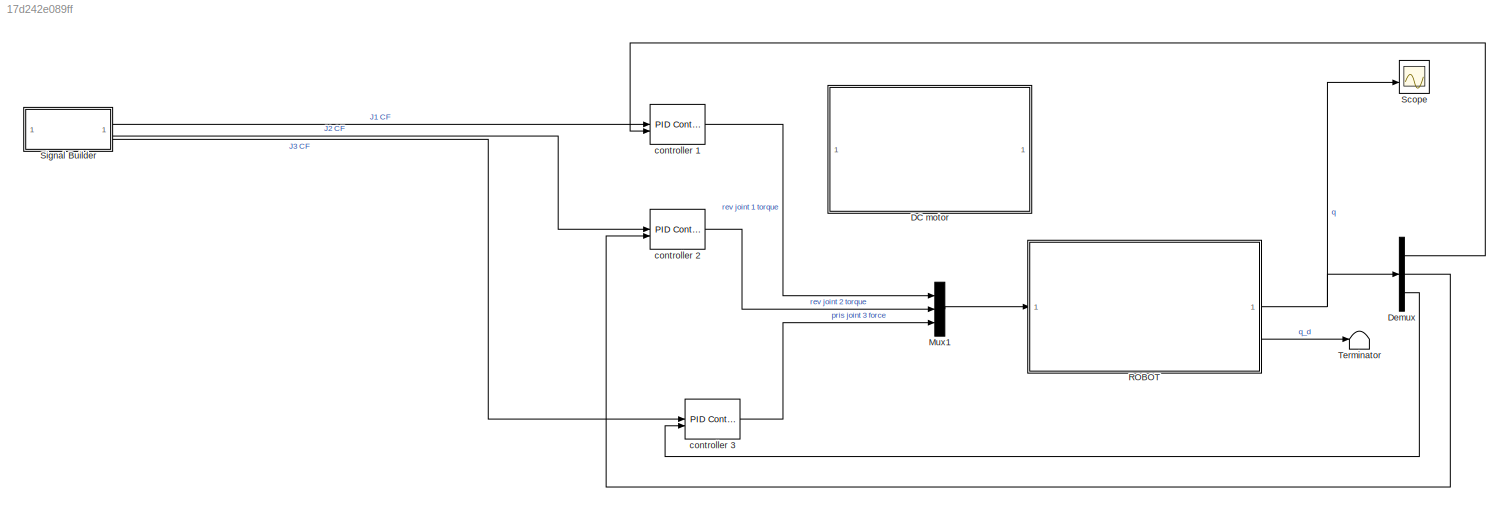
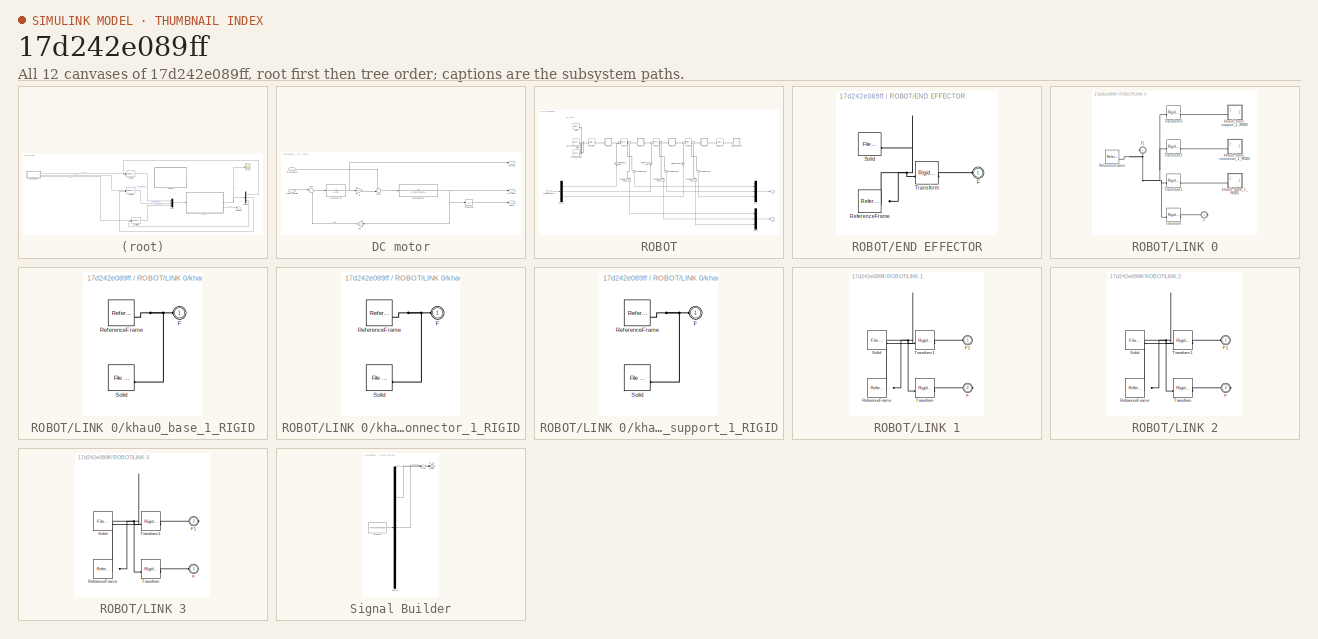
[diagram: thumbnail index - all 12 canvases of the model, root first then tree order]
MODEL slx_17d242e089ff
KIND model
CONFIG AbsTol = auto
CONFIG EnableMultiTasking = off
CONFIG FixedStep = 0.001
CONFIG MaxStep = auto
CONFIG MinStep = auto
CONFIG RelTol = 1e-3
CONFIG SampleTimeConstraint = Unconstrained
CONFIG SolverName = ode4
CONFIG StartTime = 0.0
CONFIG StopTime = 10.0
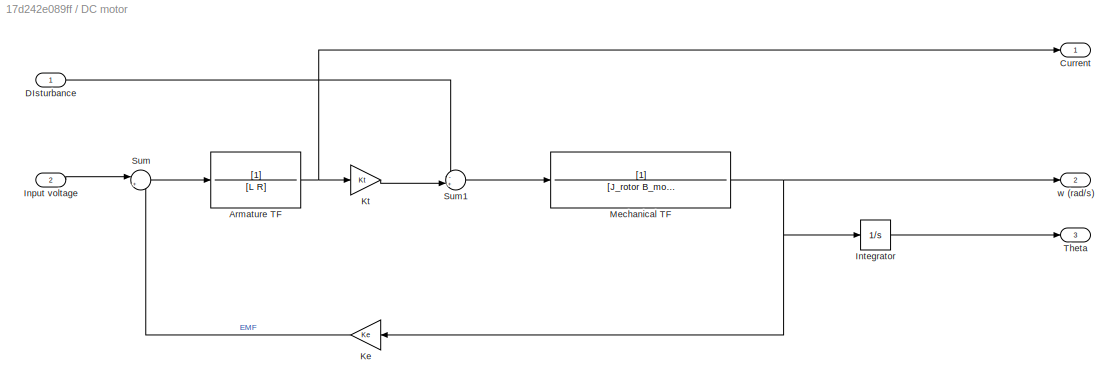
BLOCK [SubSystem] DC motor
BLOCK [TransferFcn] DC motor/Armature TF
  Denominator = [L R]
BLOCK [Outport] DC motor/Current
BLOCK [Inport] DC motor/DIsturbance
BLOCK [Inport] DC motor/Input voltage
  Port = 2
BLOCK [Integrator] DC motor/Integrator
BLOCK [Gain] DC motor/Ke
  Gain = Ke
BLOCK [Gain] DC motor/Kt
  Gain = Kt
BLOCK [TransferFcn] DC motor/Mechanical TF
  Denominator = [J_rotor B_motor]
BLOCK [Sum] DC motor/Sum
  Inputs = |+-
BLOCK [Sum] DC motor/Sum1
  Inputs = -+|
BLOCK [Outport] DC motor/Theta
  Port = 3
BLOCK [Outport] DC motor/w (rad//s)
  Port = 2
BLOCK [Demux] Demux
  Outputs = 3
BLOCK [Mux] Mux1
  DisplayOption = bar
  Inputs = 3
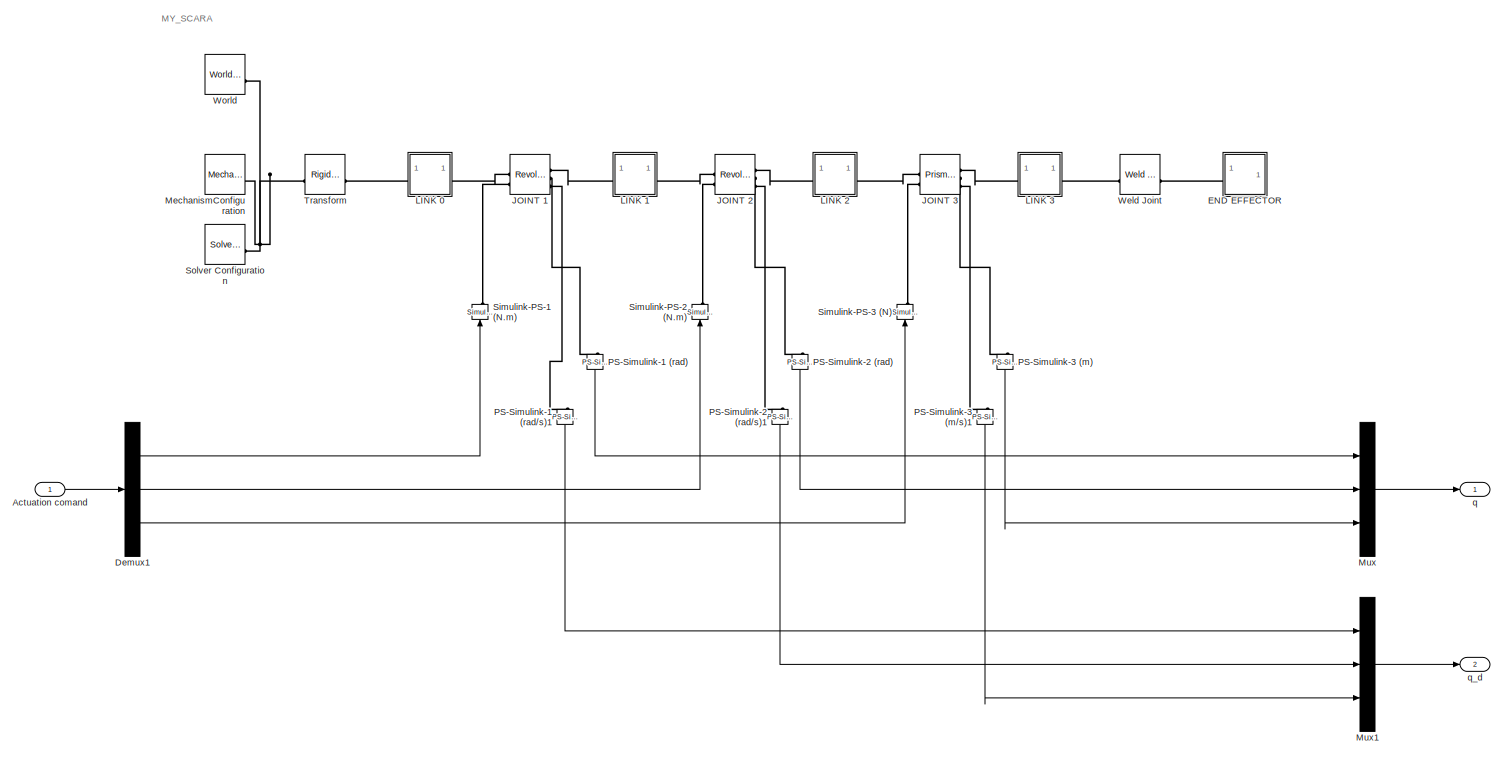
[diagram: ROBOT - part 1/1, most of the canvas]
BLOCK [SubSystem] ROBOT
BLOCK [Inport] ROBOT/Actuation comand
BLOCK [Demux] ROBOT/Demux1
  Outputs = 3
BLOCK [SubSystem] ROBOT/END EFFECTOR
BLOCK [PMIOPort] ROBOT/END EFFECTOR/F
  Side = Left
BLOCK [Reference] ROBOT/END EFFECTOR/ReferenceFrame  REF=sm_lib/Frames and
Transforms/Reference
Frame
  SourceBlock = sm_lib/Frames and\nTransforms/Reference\nFrame
  SourceType = Reference\nFrame
BLOCK [Reference] ROBOT/END EFFECTOR/Solid  REF=sm_lib/Body Elements/File Solid
  SourceBlock = sm_lib/Body Elements/File Solid
  SourceType = File Solid
BLOCK [Reference] ROBOT/END EFFECTOR/Transform  REF=sm_lib/Frames and
Transforms/Rigid
Transform
  SourceBlock = sm_lib/Frames and\nTransforms/Rigid\nTransform
  SourceType = Rigid\nTransform
BLOCK [Reference] ROBOT/JOINT 1  REF=sm_lib/Joints/Revolute Joint
  SourceBlock = sm_lib/Joints/Revolute Joint
  SourceType = Revolute Joint
BLOCK [Reference] ROBOT/JOINT 2  REF=sm_lib/Joints/Revolute Joint
  SourceBlock = sm_lib/Joints/Revolute Joint
  SourceType = Revolute Joint
BLOCK [Reference] ROBOT/JOINT 3  REF=sm_lib/Joints/Prismatic
Joint
  SourceBlock = sm_lib/Joints/Prismatic\nJoint
  SourceType = Prismatic\nJoint
BLOCK [SubSystem] ROBOT/LINK 0
BLOCK [PMIOPort] ROBOT/LINK 0/F
  Port = 2
  Side = Right
BLOCK [PMIOPort] ROBOT/LINK 0/F1
  Side = Left
BLOCK [Reference] ROBOT/LINK 0/ReferenceFrame  REF=sm_lib/Frames and
Transforms/Reference
Frame
  SourceBlock = sm_lib/Frames and\nTransforms/Reference\nFrame
  SourceType = Reference\nFrame
BLOCK [Reference] ROBOT/LINK 0/Transform  REF=sm_lib/Frames and
Transforms/Rigid
Transform
  SourceBlock = sm_lib/Frames and\nTransforms/Rigid\nTransform
  SourceType = Rigid\nTransform
BLOCK [Reference] ROBOT/LINK 0/Transform1  REF=sm_lib/Frames and
Transforms/Rigid
Transform
  SourceBlock = sm_lib/Frames and\nTransforms/Rigid\nTransform
  SourceType = Rigid\nTransform
BLOCK [Reference] ROBOT/LINK 0/Transform2  REF=sm_lib/Frames and
Transforms/Rigid
Transform
  SourceBlock = sm_lib/Frames and\nTransforms/Rigid\nTransform
  SourceType = Rigid\nTransform
BLOCK [Reference] ROBOT/LINK 0/Transform3  REF=sm_lib/Frames and
Transforms/Rigid
Transform
  SourceBlock = sm_lib/Frames and\nTransforms/Rigid\nTransform
  SourceType = Rigid\nTransform
BLOCK [SubSystem] ROBOT/LINK 0/khau0_base_1_RIGID
BLOCK [PMIOPort] ROBOT/LINK 0/khau0_base_1_RIGID/F
  Side = Left
BLOCK [Reference] ROBOT/LINK 0/khau0_base_1_RIGID/ReferenceFrame  REF=sm_lib/Frames and
Transforms/Reference
Frame
  SourceBlock = sm_lib/Frames and\nTransforms/Reference\nFrame
  SourceType = Reference\nFrame
BLOCK [Reference] ROBOT/LINK 0/khau0_base_1_RIGID/Solid  REF=sm_lib/Body Elements/File Solid
  SourceBlock = sm_lib/Body Elements/File Solid
  SourceType = File Solid
BLOCK [SubSystem] ROBOT/LINK 0/khau0_base_connector_1_RIGID
BLOCK [PMIOPort] ROBOT/LINK 0/khau0_base_connector_1_RIGID/F
  Side = Left
BLOCK [Reference] ROBOT/LINK 0/khau0_base_connector_1_RIGID/ReferenceFrame  REF=sm_lib/Frames and
Transforms/Reference
Frame
  SourceBlock = sm_lib/Frames and\nTransforms/Reference\nFrame
  SourceType = Reference\nFrame
BLOCK [Reference] ROBOT/LINK 0/khau0_base_connector_1_RIGID/Solid  REF=sm_lib/Body Elements/File Solid
  SourceBlock = sm_lib/Body Elements/File Solid
  SourceType = File Solid
BLOCK [SubSystem] ROBOT/LINK 0/khau0_base_support_1_RIGID
BLOCK [PMIOPort] ROBOT/LINK 0/khau0_base_support_1_RIGID/F
  Side = Left
BLOCK [Reference] ROBOT/LINK 0/khau0_base_support_1_RIGID/ReferenceFrame  REF=sm_lib/Frames and
Transforms/Reference
Frame
  SourceBlock = sm_lib/Frames and\nTransforms/Reference\nFrame
  SourceType = Reference\nFrame
BLOCK [Reference] ROBOT/LINK 0/khau0_base_support_1_RIGID/Solid  REF=sm_lib/Body Elements/File Solid
  SourceBlock = sm_lib/Body Elements/File Solid
  SourceType = File Solid
BLOCK [SubSystem] ROBOT/LINK 1
BLOCK [PMIOPort] ROBOT/LINK 1/F
  Port = 2
  Side = Right
BLOCK [PMIOPort] ROBOT/LINK 1/F1
  Side = Left
BLOCK [Reference] ROBOT/LINK 1/ReferenceFrame  REF=sm_lib/Frames and
Transforms/Reference
Frame
  SourceBlock = sm_lib/Frames and\nTransforms/Reference\nFrame
  SourceType = Reference\nFrame
BLOCK [Reference] ROBOT/LINK 1/Solid  REF=sm_lib/Body Elements/File Solid
  SourceBlock = sm_lib/Body Elements/File Solid
  SourceType = File Solid
BLOCK [Reference] ROBOT/LINK 1/Transform  REF=sm_lib/Frames and
Transforms/Rigid
Transform
  SourceBlock = sm_lib/Frames and\nTransforms/Rigid\nTransform
  SourceType = Rigid\nTransform
BLOCK [Reference] ROBOT/LINK 1/Transform1  REF=sm_lib/Frames and
Transforms/Rigid
Transform
  SourceBlock = sm_lib/Frames and\nTransforms/Rigid\nTransform
  SourceType = Rigid\nTransform
BLOCK [SubSystem] ROBOT/LINK 2
BLOCK [PMIOPort] ROBOT/LINK 2/F
  Port = 2
  Side = Right
BLOCK [PMIOPort] ROBOT/LINK 2/F1
  Side = Left
BLOCK [Reference] ROBOT/LINK 2/ReferenceFrame  REF=sm_lib/Frames and
Transforms/Reference
Frame
  SourceBlock = sm_lib/Frames and\nTransforms/Reference\nFrame
  SourceType = Reference\nFrame
BLOCK [Reference] ROBOT/LINK 2/Solid  REF=sm_lib/Body Elements/File Solid
  SourceBlock = sm_lib/Body Elements/File Solid
  SourceType = File Solid
BLOCK [Reference] ROBOT/LINK 2/Transform  REF=sm_lib/Frames and
Transforms/Rigid
Transform
  SourceBlock = sm_lib/Frames and\nTransforms/Rigid\nTransform
  SourceType = Rigid\nTransform
BLOCK [Reference] ROBOT/LINK 2/Transform1  REF=sm_lib/Frames and
Transforms/Rigid
Transform
  SourceBlock = sm_lib/Frames and\nTransforms/Rigid\nTransform
  SourceType = Rigid\nTransform
BLOCK [SubSystem] ROBOT/LINK 3
BLOCK [PMIOPort] ROBOT/LINK 3/F
  Side = Left
BLOCK [PMIOPort] ROBOT/LINK 3/F1
  Port = 2
  Side = Right
BLOCK [Reference] ROBOT/LINK 3/ReferenceFrame  REF=sm_lib/Frames and
Transforms/Reference
Frame
  SourceBlock = sm_lib/Frames and\nTransforms/Reference\nFrame
  SourceType = Reference\nFrame
BLOCK [Reference] ROBOT/LINK 3/Solid  REF=sm_lib/Body Elements/File Solid
  SourceBlock = sm_lib/Body Elements/File Solid
  SourceType = File Solid
BLOCK [Reference] ROBOT/LINK 3/Transform  REF=sm_lib/Frames and
Transforms/Rigid
Transform
  SourceBlock = sm_lib/Frames and\nTransforms/Rigid\nTransform
  SourceType = Rigid\nTransform
BLOCK [Reference] ROBOT/LINK 3/Transform1  REF=sm_lib/Frames and
Transforms/Rigid
Transform
  SourceBlock = sm_lib/Frames and\nTransforms/Rigid\nTransform
  SourceType = Rigid\nTransform
BLOCK [Reference] ROBOT/MechanismConfiguration  REF=sm_lib/Utilities/Mechanism
Configuration
  SourceBlock = sm_lib/Utilities/Mechanism\nConfiguration
  SourceType = Mechanism\nConfiguration
BLOCK [Mux] ROBOT/Mux
  DisplayOption = bar
  Inputs = 3
BLOCK [Mux] ROBOT/Mux1
  DisplayOption = bar
  Inputs = 3
BLOCK [Reference] ROBOT/PS-Simulink-1 (rad)  REF=nesl_utility/PS-Simulink
Converter
  NameLocation = left
  SourceBlock = nesl_utility/PS-Simulink\nConverter
  SourceType = PS-Simulink\nConverter
BLOCK [Reference] ROBOT/PS-Simulink-1 (rad//s)1  REF=nesl_utility/PS-Simulink
Converter
  NameLocation = left
  SourceBlock = nesl_utility/PS-Simulink\nConverter
  SourceType = PS-Simulink\nConverter
BLOCK [Reference] ROBOT/PS-Simulink-2 (rad)  REF=nesl_utility/PS-Simulink
Converter
  NameLocation = left
  SourceBlock = nesl_utility/PS-Simulink\nConverter
  SourceType = PS-Simulink\nConverter
BLOCK [Reference] ROBOT/PS-Simulink-2 (rad//s)1  REF=nesl_utility/PS-Simulink
Converter
  NameLocation = left
  SourceBlock = nesl_utility/PS-Simulink\nConverter
  SourceType = PS-Simulink\nConverter
BLOCK [Reference] ROBOT/PS-Simulink-3 (m)  REF=nesl_utility/PS-Simulink
Converter
  NameLocation = left
  SourceBlock = nesl_utility/PS-Simulink\nConverter
  SourceType = PS-Simulink\nConverter
BLOCK [Reference] ROBOT/PS-Simulink-3 (m//s)1  REF=nesl_utility/PS-Simulink
Converter
  NameLocation = left
  SourceBlock = nesl_utility/PS-Simulink\nConverter
  SourceType = PS-Simulink\nConverter
BLOCK [Reference] ROBOT/Simulink-PS-1 (N.m)  REF=nesl_utility/Simulink-PS
Converter
  NameLocation = right
  SourceBlock = nesl_utility/Simulink-PS\nConverter
  SourceType = Simulink-PS\nConverter
BLOCK [Reference] ROBOT/Simulink-PS-2 (N.m)  REF=nesl_utility/Simulink-PS
Converter
  NameLocation = right
  SourceBlock = nesl_utility/Simulink-PS\nConverter
  SourceType = Simulink-PS\nConverter
BLOCK [Reference] ROBOT/Simulink-PS-3 (N)  REF=nesl_utility/Simulink-PS
Converter
  NameLocation = right
  SourceBlock = nesl_utility/Simulink-PS\nConverter
  SourceType = Simulink-PS\nConverter
BLOCK [Reference] ROBOT/Solver Configuration  REF=nesl_utility/Solver
Configuration
  SourceBlock = nesl_utility/Solver\nConfiguration
  SourceType = Solver\nConfiguration
BLOCK [Reference] ROBOT/Transform  REF=sm_lib/Frames and
Transforms/Rigid
Transform
  SourceBlock = sm_lib/Frames and\nTransforms/Rigid\nTransform
  SourceType = Rigid\nTransform
BLOCK [Reference] ROBOT/Weld Joint  REF=sm_lib/Joints/Weld Joint
  SourceBlock = sm_lib/Joints/Weld Joint
  SourceType = Weld Joint
BLOCK [Reference] ROBOT/World  REF=sm_lib/Frames and
Transforms/World Frame
  SourceBlock = sm_lib/Frames and\nTransforms/World Frame
  SourceType = World Frame
BLOCK [Outport] ROBOT/q
BLOCK [Outport] ROBOT/q_d
  Port = 2
BLOCK [Scope] Scope
  Floating = off
  NumInputPorts = 2
  ScopeSpecificationString = Simulink.scopes.TimeScopeBlockCfg('CurrentConfiguration', extmgr.ConfigurationSet(extmgr.Configuration('Core','General UI',true),extmgr.Configuration('Core','Source UI',true),extmgr.Configuration('Sources','WiredSimulink',true),extmgr.Configuration('Visuals','Time Domain',true,'SerializedDisplays',{struct('MinYLimReal','-0.09817','MaxYLimReal','0.88357','YLabelReal','','MinYLimMag','0.00000','MaxY...<+2016ch>
BLOCK [SubSystem] Signal Builder
  ClipboardFcn = sigbuilder_block('clipboard');
  CloseFcn = sigbuilder_block('close');
  ContinueFcn = sigbuilder_block('continue');
  CopyFcn = sigbuilder_block('copy');
  DeleteFcn = sigbuilder_block('delete');
  LoadFcn = sigbuilder_block('load');
  MaskHideContents = on
  ModelCloseFcn = sigbuilder_block('modelClose');
  NameChangeFcn = sigbuilder_block('namechange');
  OpenFcn = sigbuilder_block('open',[229.8 174 622.8 325.2 ]);
  PauseFcn = sigbuilder_block('pause');
  PreSaveFcn = sigbuilder_block('preSave');
  StartFcn = sigbuilder_block('start');
  StopFcn = sigbuilder_block('stop');
  Tag = STV Subsys
BLOCK [Demux] Signal Builder/Demux
  DisplayOption = none
  Outputs = 3
  Tag = STV Demux
BLOCK [FromWorkspace] Signal Builder/FromWs
  SampleTime = 1
  Tag = STV FromWs
  VariableName = tuvar
BLOCK [Outport] Signal Builder/J1 CF
  Tag = STV Outport
BLOCK [Outport] Signal Builder/J2 CF
  Port = 2
  Tag = STV Outport
BLOCK [Outport] Signal Builder/J3 CF
  Port = 3
  Tag = STV Outport
BLOCK [Terminator] Terminator
BLOCK [Reference] controller 1  REF=slpidlib/PID Controller (2DOF)
  LibrarySourceBlock = simulink/Continuous/PID Controller (2DOF)
  SourceBlock = slpidlib/PID Controller (2DOF)
  SourceType = PID 2dof
BLOCK [Reference] controller 2  REF=slpidlib/PID Controller (2DOF)
  LibrarySourceBlock = simulink/Continuous/PID Controller (2DOF)
  SourceBlock = slpidlib/PID Controller (2DOF)
  SourceType = PID 2dof
BLOCK [Reference] controller 3  REF=slpidlib/PID Controller (2DOF)
  LibrarySourceBlock = simulink/Continuous/PID Controller (2DOF)
  SourceBlock = slpidlib/PID Controller (2DOF)
  SourceType = PID 2dof
ANNOTATION ROBOT: MY_SCARA
NET DC motor/Armature TF:1 -> DC motor/Current:1, DC motor/Kt:1
LINE DC motor/DIsturbance:1 -> DC motor/Sum1:1
LINE DC motor/Input voltage:1 -> DC motor/Sum:1
LINE DC motor/Integrator:1 -> DC motor/Theta:1
LINE DC motor/Ke:1 -> DC motor/Sum:2
LINE DC motor/Kt:1 -> DC motor/Sum1:2
NET DC motor/Mechanical TF:1 -> DC motor/Integrator:1, DC motor/Ke:1, DC motor/w (rad//s):1
LINE DC motor/Sum1:1 -> DC motor/Mechanical TF:1
LINE DC motor/Sum:1 -> DC motor/Armature TF:1
LINE Demux:1 -> controller 1:2
LINE Demux:2 -> controller 2:2
LINE Demux:3 -> controller 3:2
LINE Mux1:1 -> ROBOT:1
LINE ROBOT/Actuation comand:1 -> ROBOT/Demux1:1
LINE ROBOT/Demux1:1 -> ROBOT/Simulink-PS-1 (N.m):1
LINE ROBOT/Demux1:2 -> ROBOT/Simulink-PS-2 (N.m):1
LINE ROBOT/Demux1:3 -> ROBOT/Simulink-PS-3 (N):1
LINE ROBOT/Mux1:1 -> ROBOT/q_d:1
LINE ROBOT/Mux:1 -> ROBOT/q:1
LINE ROBOT/PS-Simulink-1 (rad):1 -> ROBOT/Mux:1
LINE ROBOT/PS-Simulink-1 (rad//s)1:1 -> ROBOT/Mux1:1
LINE ROBOT/PS-Simulink-2 (rad):1 -> ROBOT/Mux:2
LINE ROBOT/PS-Simulink-2 (rad//s)1:1 -> ROBOT/Mux1:2
LINE ROBOT/PS-Simulink-3 (m):1 -> ROBOT/Mux:3
LINE ROBOT/PS-Simulink-3 (m//s)1:1 -> ROBOT/Mux1:3
NET ROBOT:1 -> Demux:1, Scope:2
LINE ROBOT:2 -> Terminator:1
LINE Signal Builder:1 -> controller 1:1
LINE Signal Builder:2 -> controller 2:1
LINE Signal Builder:3 -> controller 3:1
LINE controller 1:1 -> Mux1:1
LINE controller 2:1 -> Mux1:2
LINE controller 3:1 -> Mux1:3
PLINE ROBOT/END EFFECTOR/F:RConn1 -- ROBOT/END EFFECTOR/Transform:RConn1
PNET net1: ROBOT/END EFFECTOR/ReferenceFrame:RConn1 -- ROBOT/END EFFECTOR/Solid:RConn1 -- ROBOT/END EFFECTOR/Transform:LConn1
PLINE ROBOT/END EFFECTOR:LConn1 -- ROBOT/Weld Joint:RConn1
PLINE ROBOT/JOINT 1:LConn1 -- ROBOT/LINK 0:RConn1
PLINE ROBOT/JOINT 1:LConn2 -- ROBOT/Simulink-PS-1 (N.m):RConn1
PLINE ROBOT/JOINT 1:RConn1 -- ROBOT/LINK 1:LConn1
PLINE ROBOT/JOINT 1:RConn2 -- ROBOT/PS-Simulink-1 (rad):LConn1
PLINE ROBOT/JOINT 1:RConn3 -- ROBOT/PS-Simulink-1 (rad//s)1:LConn1
PLINE ROBOT/JOINT 2:LConn1 -- ROBOT/LINK 1:RConn1
PLINE ROBOT/JOINT 2:LConn2 -- ROBOT/Simulink-PS-2 (N.m):RConn1
PLINE ROBOT/JOINT 2:RConn1 -- ROBOT/LINK 2:LConn1
PLINE ROBOT/JOINT 2:RConn2 -- ROBOT/PS-Simulink-2 (rad):LConn1
PLINE ROBOT/JOINT 2:RConn3 -- ROBOT/PS-Simulink-2 (rad//s)1:LConn1
PLINE ROBOT/JOINT 3:LConn1 -- ROBOT/LINK 2:RConn1
PLINE ROBOT/JOINT 3:LConn2 -- ROBOT/Simulink-PS-3 (N):RConn1
PLINE ROBOT/JOINT 3:RConn1 -- ROBOT/LINK 3:LConn1
PLINE ROBOT/JOINT 3:RConn2 -- ROBOT/PS-Simulink-3 (m):LConn1
PLINE ROBOT/JOINT 3:RConn3 -- ROBOT/PS-Simulink-3 (m//s)1:LConn1
PNET net2: ROBOT/LINK 0/F1:RConn1 -- ROBOT/LINK 0/ReferenceFrame:RConn1 -- ROBOT/LINK 0/Transform1:LConn1 -- ROBOT/LINK 0/Transform2:LConn1 -- ROBOT/LINK 0/Transform3:LConn1 -- ROBOT/LINK 0/Transform:LConn1
PLINE ROBOT/LINK 0/F:RConn1 -- ROBOT/LINK 0/Transform:RConn1
PLINE ROBOT/LINK 0/Transform1:RConn1 -- ROBOT/LINK 0/khau0_base_1_RIGID:LConn1
PLINE ROBOT/LINK 0/Transform2:RConn1 -- ROBOT/LINK 0/khau0_base_connector_1_RIGID:LConn1
PLINE ROBOT/LINK 0/Transform3:RConn1 -- ROBOT/LINK 0/khau0_base_support_1_RIGID:LConn1
PNET net3: ROBOT/LINK 0/khau0_base_1_RIGID/F:RConn1 -- ROBOT/LINK 0/khau0_base_1_RIGID/ReferenceFrame:RConn1 -- ROBOT/LINK 0/khau0_base_1_RIGID/Solid:RConn1
PNET net4: ROBOT/LINK 0/khau0_base_connector_1_RIGID/F:RConn1 -- ROBOT/LINK 0/khau0_base_connector_1_RIGID/ReferenceFrame:RConn1 -- ROBOT/LINK 0/khau0_base_connector_1_RIGID/Solid:RConn1
PNET net5: ROBOT/LINK 0/khau0_base_support_1_RIGID/F:RConn1 -- ROBOT/LINK 0/khau0_base_support_1_RIGID/ReferenceFrame:RConn1 -- ROBOT/LINK 0/khau0_base_support_1_RIGID/Solid:RConn1
PLINE ROBOT/LINK 0:LConn1 -- ROBOT/Transform:RConn1
PLINE ROBOT/LINK 1/F1:RConn1 -- ROBOT/LINK 1/Transform1:RConn1
PLINE ROBOT/LINK 1/F:RConn1 -- ROBOT/LINK 1/Transform:RConn1
PNET net6: ROBOT/LINK 1/ReferenceFrame:RConn1 -- ROBOT/LINK 1/Solid:RConn1 -- ROBOT/LINK 1/Transform1:LConn1 -- ROBOT/LINK 1/Transform:LConn1
PLINE ROBOT/LINK 2/F1:RConn1 -- ROBOT/LINK 2/Transform1:RConn1
PLINE ROBOT/LINK 2/F:RConn1 -- ROBOT/LINK 2/Transform:RConn1
PNET net7: ROBOT/LINK 2/ReferenceFrame:RConn1 -- ROBOT/LINK 2/Solid:RConn1 -- ROBOT/LINK 2/Transform1:LConn1 -- ROBOT/LINK 2/Transform:LConn1
PLINE ROBOT/LINK 3/F1:RConn1 -- ROBOT/LINK 3/Transform1:RConn1
PLINE ROBOT/LINK 3/F:RConn1 -- ROBOT/LINK 3/Transform:RConn1
PNET net8: ROBOT/LINK 3/ReferenceFrame:RConn1 -- ROBOT/LINK 3/Solid:RConn1 -- ROBOT/LINK 3/Transform1:LConn1 -- ROBOT/LINK 3/Transform:LConn1
PLINE ROBOT/LINK 3:RConn1 -- ROBOT/Weld Joint:LConn1
PNET net9: ROBOT/MechanismConfiguration:RConn1 -- ROBOT/Solver Configuration:RConn1 -- ROBOT/Transform:LConn1 -- ROBOT/World:RConn1
note: NET lines group one-source signal fan-out (src -> all destinations, sorted); 1:1 wires keep LINE; PNET lines group multi-terminal physical nets as a canonical sorted terminal list (undirected conserving connections); 2-terminal nets keep the pairwise PLINE form
